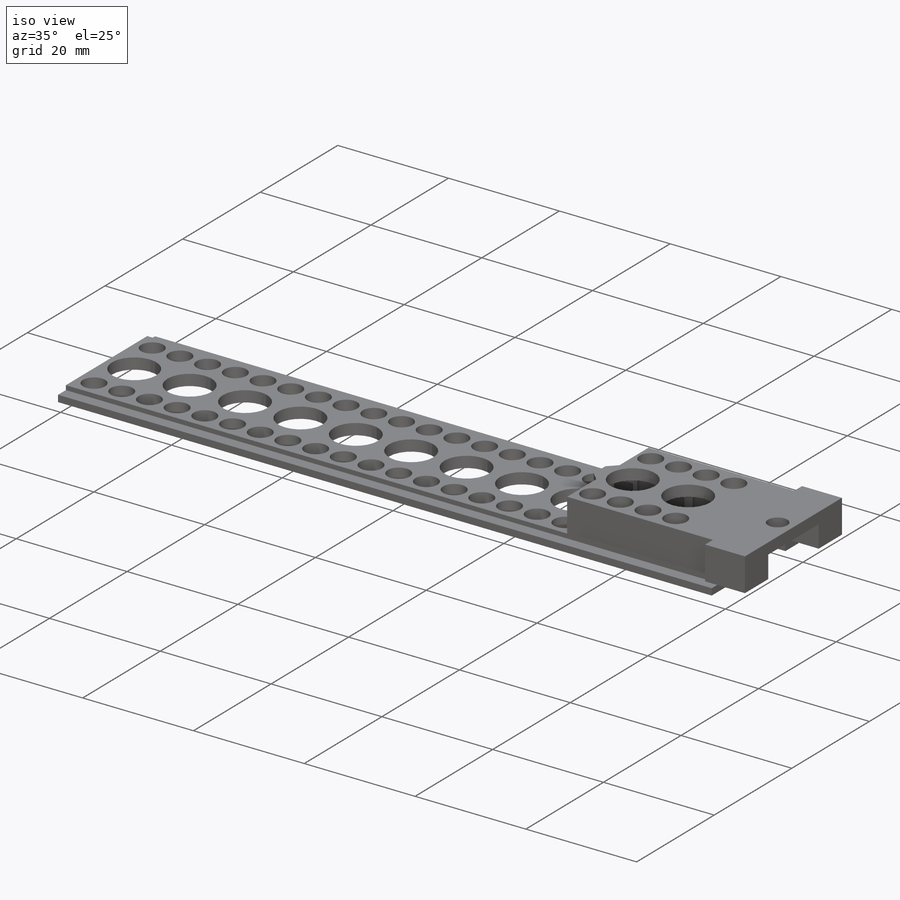
[diagram: iso view]
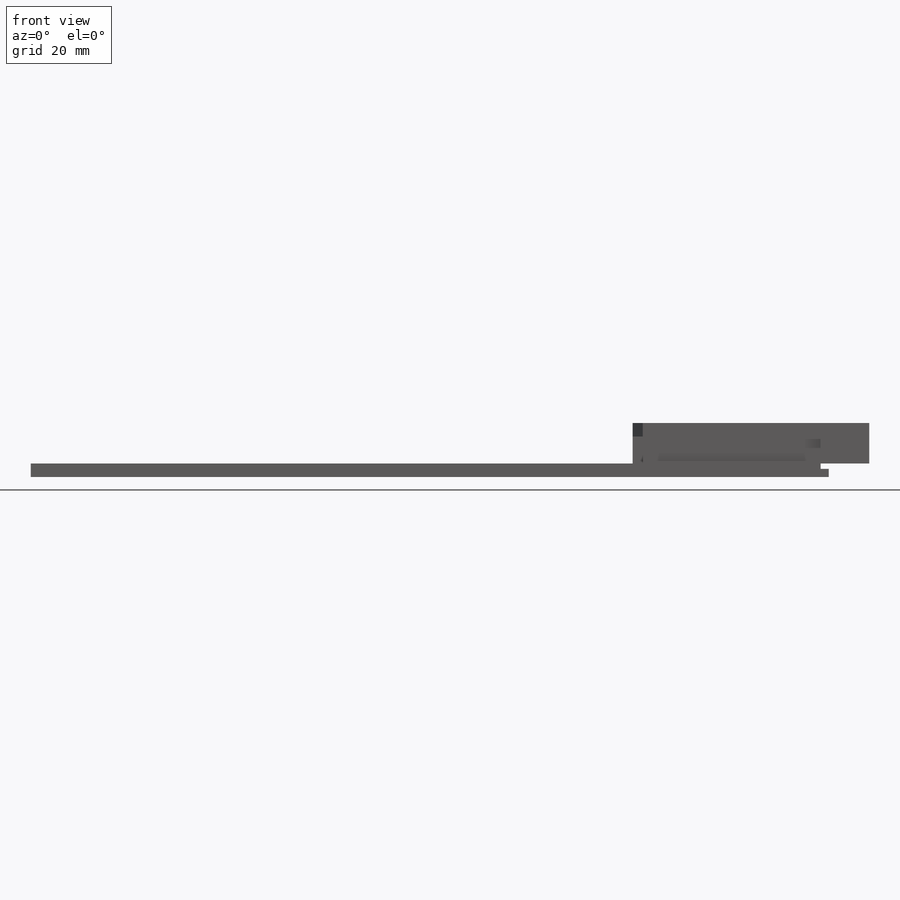
[diagram: front view]
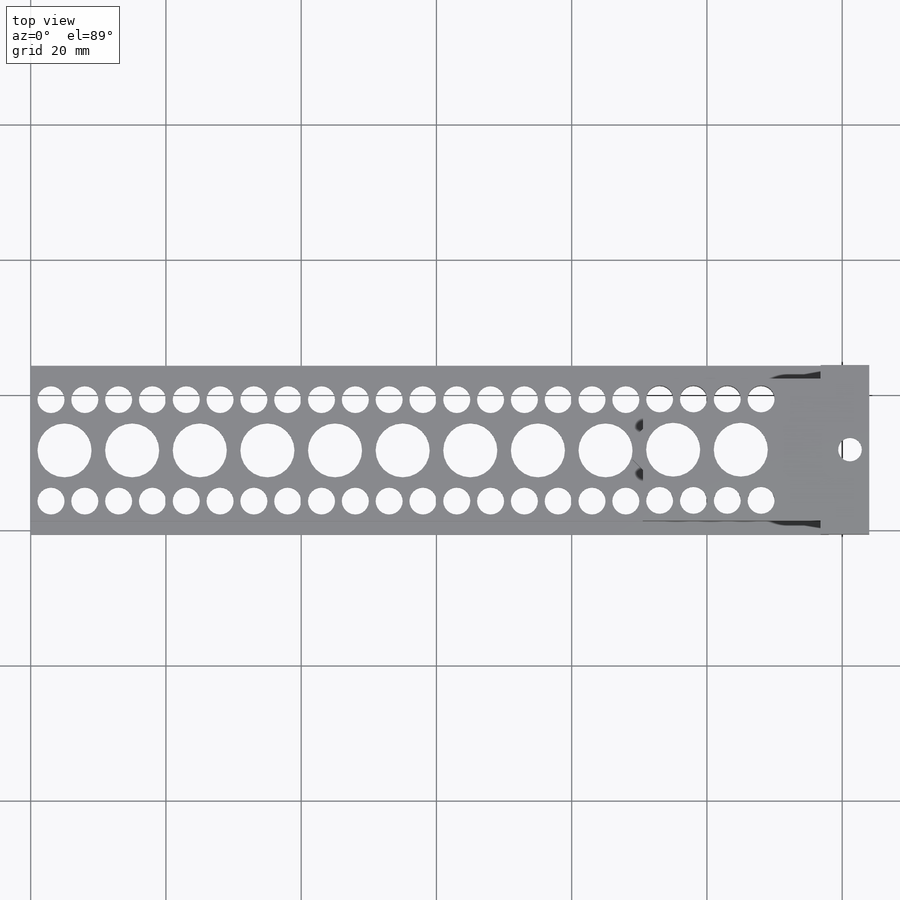
[diagram: top view]
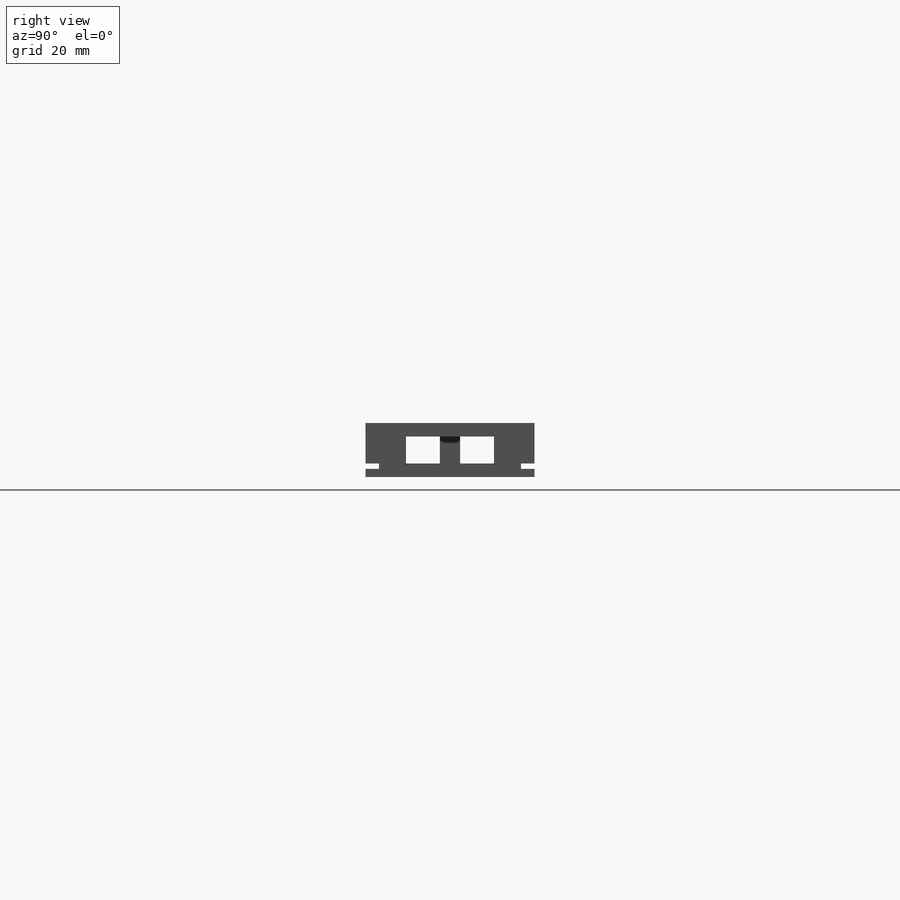
[diagram: right view]
SOLIDWORKS PART (.sldprt)
format: sldprt  version: not decoded by parser v0  size: 461,312 bytes
history: native  units: mm
features: sketch x9, cut_extrude x6, plane x3, extrude x3, material x1, pattern_linear x1, chamfer x1 (+8 scaffold rows collapsed)
feature tree (32):
  scaffold x8  (default folders/planes/origin — collapsed)
  material  "Material <nicht festgelegt>"
  plane  "Ebene vorne"
  plane  "Ebene oben"
  plane  "Ebene rechts"
  sketch  "Skizze1"  dims[D1=8.0mm D2=25.0mm]
  extrude  "Aufsatz-Linear austragen1"  Depth=124mm
  sketch  "Skizze2"  dims[c1.D1=2.0mm c1.D2=1.2mm c1.D3=2.0mm c1.D4=1.2mm c1.D5=~0.95808mm c1.D6=1.2mm c2.D2=0.0mm c2.D5=0.0mm c2.D4=1.2mm]
  cut_extrude  "Schnitt-Linear austragen1"  [1 undecoded]
  sketch  "Skizze3"  dims[c1.D6=3.5mm c1.D7=3.5mm c1.D1=11.0mm c1.D2=6.0mm c1.D3=0.0mm c1.D4=6.0mm c1.D5=6.0mm c2.D1=12.5mm c2.D7=2.85mm]
  cut_extrude  "Schnitt-Linear austragen2"  [1 undecoded]
  sketch  "Skizze4"  dims[D1=0.0mm D2=0.0mm]
  cut_extrude  "Schnitt-Linear austragen3"  Depth=1.2mm
  sketch  "Skizze5"  dims[c1.D4=4.0mm c1.D6=4.0mm c1.D8=8.0mm c1.D10=4.0mm c1.D11=4.0mm c1.D1=3.0mm c1.D2=3.0mm c1.D3=3.0mm c1.D5=7.5mm c2.D6=8.0mm c2.D7=3.0mm c2.D9=5.0mm c2.D12=5.0mm c2.D13=5.0mm]
  cut_extrude  "Schnitt-Linear austragen4"  [1 undecoded]
  pattern_linear  "Lineares Muster1"  Count1=11 Count2=1 Spacing1=10mm Spacing2=10mm
  sketch  "Skizze6"  dims[D1=33.5mm]
  cut_extrude  "Schnitt-Linear austragen5"  Depth=6mm
  sketch  "Skizze7"  dims[c1.D1=0.0mm c1.D2=0.0mm c1.D3=5.0mm c1.D4=0.0mm c2.D3=0.0mm]
  cut_extrude  "Schnitt-Linear austragen6"  Depth=6mm
  sketch  "Skizze8"  dims[D1=0.0mm D2=0.0mm D3=0.0mm D4=0.0mm]
  extrude  "Aufsatz-Linear austragen2"  Depth=6mm
  sketch  "Skizze9"  dims[c1.D1=1.0mm c1.D2=9.0mm c1.D3=9.0mm c2.D1=4.0mm]
  extrude  "Aufsatz-Linear austragen3"  [1 undecoded]
  chamfer  "Fase1"  Distance=1.5mm Angle=45deg
decode coverage: 16 of 20 modeling features carry decoded parameters
note: ~ marks probable driven/reference dimensions
note: 4 parameter values undecoded
summary: no parameter record found for 4 features
note: suppression state not decoded; provenance and decode notes live in map.json
